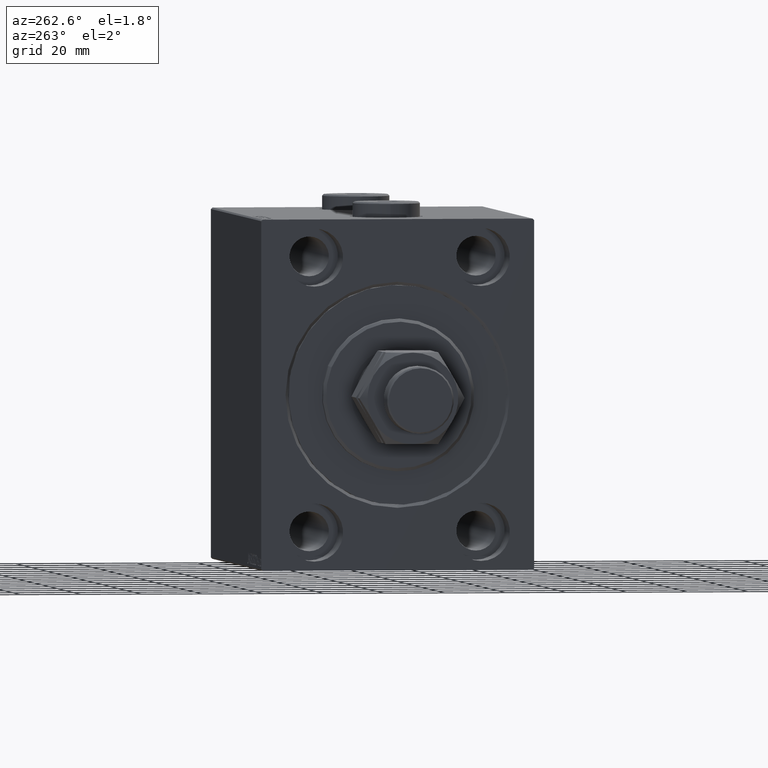
[diagram: clean part render]
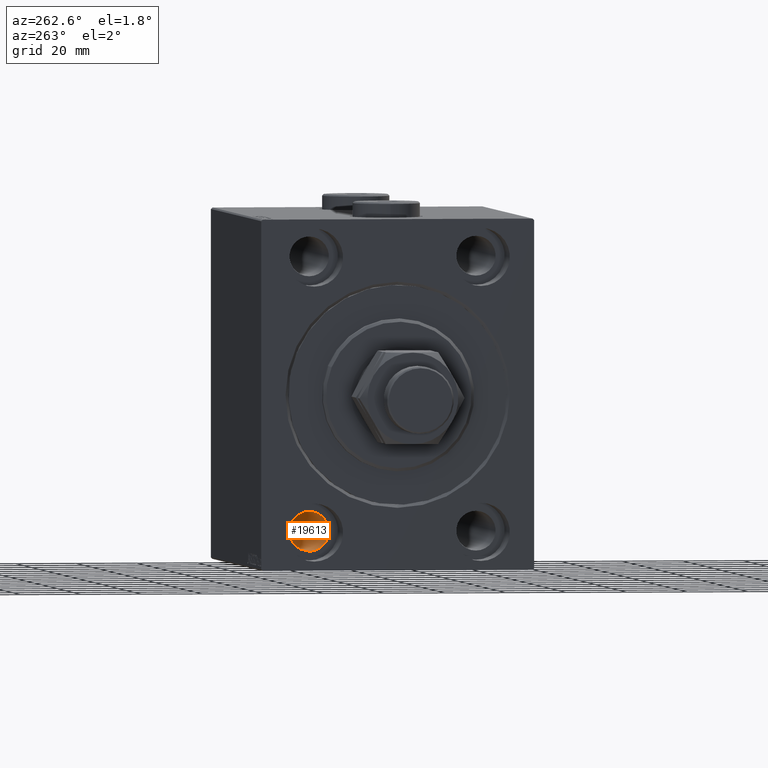
[diagram: same view with one face highlighted and labeled with its STEP entity id]
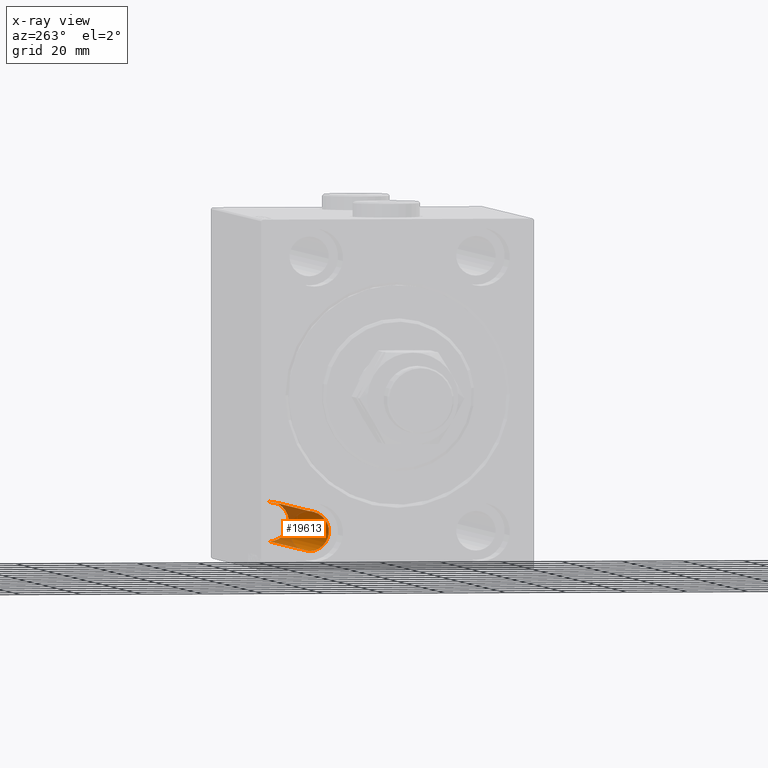
[diagram: x-ray of the same camera — body ghosted, the highlighted face saturated]
A machine part, auxiliary view. The second image highlights one B-rep face of the part: STEP entity #19613.
The next image is the same camera in x-ray: the body ghosted, the highlighted face saturated — about 25% of this face is hidden behind the body in this view.
In plain terms, the highlighted cylindrical surface (edge-blend (fillet) strip) has radius 6.5 mm, axis along (-1, -0, -0).
Its self-contained STEP definition (entity closure, byte-faithful):
#1648 = DIRECTION ( 'NONE',  ( -1.000000000000000000, -0.000000000000000000, -0.000000000000000000 ) ) ;
#1920 = DIRECTION ( 'NONE',  ( -1.000000000000000000, -0.000000000000000000, -0.000000000000000000 ) ) ;
#1941 = EDGE_CURVE ( 'NONE', #21157, #6068, #30909, .T. ) ;
#2170 = CIRCLE ( 'NONE', #14325, 6.499999999999999112 ) ;
#2382 = CARTESIAN_POINT ( 'NONE',  ( 115.0000000000000000, 27.49999999999998934, -44.99999999999998579 ) ) ;
#4993 = FACE_OUTER_BOUND ( 'NONE', #34231, .T. ) ;
#5596 = CIRCLE ( 'NONE', #16215, 6.499999999999999112 ) ;
#5975 = ORIENTED_EDGE ( 'NONE', *, *, #1941, .F. ) ;
#6068 = VERTEX_POINT ( 'NONE', #21674 ) ;
#7124 = DIRECTION ( 'NONE',  ( -1.000000000000000000, -0.000000000000000000, -0.000000000000000000 ) ) ;
#8150 = AXIS2_PLACEMENT_3D ( 'NONE', #19503, #1648, #15697 ) ;
#10219 = CARTESIAN_POINT ( 'NONE',  ( 128.0000000000000000, 27.49999999999998934, -51.49999999999998579 ) ) ;
#11736 = CARTESIAN_POINT ( 'NONE',  ( 115.0000000000000000, 27.49999999999998934, -51.49999999999998579 ) ) ;
#12622 = CARTESIAN_POINT ( 'NONE',  ( 128.0000000000000000, 27.49999999999998934, -38.49999999999998579 ) ) ;
#14325 = AXIS2_PLACEMENT_3D ( 'NONE', #39635, #24905, #28701 ) ;
#15697 = DIRECTION ( 'NONE',  ( 0.000000000000000000, 0.000000000000000000, 1.000000000000000000 ) ) ;
#16162 = VERTEX_POINT ( 'NONE', #11736 ) ;
#16215 = AXIS2_PLACEMENT_3D ( 'NONE', #2382, #1920, #16664 ) ;
#16664 = DIRECTION ( 'NONE',  ( 0.000000000000000000, 0.000000000000000000, -1.000000000000000000 ) ) ;
#19503 = CARTESIAN_POINT ( 'NONE',  ( 128.0000000000000000, 27.49999999999998934, -44.99999999999998579 ) ) ;
#19613 = ADVANCED_FACE ( 'NONE', ( #4993 ), #33772, .F. ) ;
#21157 = VERTEX_POINT ( 'NONE', #39804 ) ;
#21674 = CARTESIAN_POINT ( 'NONE',  ( 12.99999999999999822, 27.49999999999998934, -38.49999999999998579 ) ) ;
#22347 = ORIENTED_EDGE ( 'NONE', *, *, #39900, .F. ) ;
#23112 = EDGE_CURVE ( 'NONE', #43204, #6068, #2170, .T. ) ;
#24329 = VECTOR ( 'NONE', #7124, 1000.000000000000000 ) ;
#24905 = DIRECTION ( 'NONE',  ( -1.000000000000000000, 0.000000000000000000, 0.000000000000000000 ) ) ;
#28701 = DIRECTION ( 'NONE',  ( 0.000000000000000000, 0.000000000000000000, 1.000000000000000000 ) ) ;
#28981 = EDGE_CURVE ( 'NONE', #16162, #43204, #35891, .T. ) ;
#30909 = LINE ( 'NONE', #12622, #33641 ) ;
#32291 = ORIENTED_EDGE ( 'NONE', *, *, #23112, .T. ) ;
#33641 = VECTOR ( 'NONE', #41625, 1000.000000000000000 ) ;
#33772 = CYLINDRICAL_SURFACE ( 'NONE', #8150, 6.499999999999999112 ) ;
#34231 = EDGE_LOOP ( 'NONE', ( #22347, #44467, #32291, #5975 ) ) ;
#35891 = LINE ( 'NONE', #10219, #24329 ) ;
#39635 = CARTESIAN_POINT ( 'NONE',  ( 12.99999999999999822, 27.49999999999998934, -44.99999999999998579 ) ) ;
#39804 = CARTESIAN_POINT ( 'NONE',  ( 115.0000000000000000, 27.49999999999998934, -38.49999999999998579 ) ) ;
#39900 = EDGE_CURVE ( 'NONE', #16162, #21157, #5596, .T. ) ;
#41625 = DIRECTION ( 'NONE',  ( -1.000000000000000000, -0.000000000000000000, -0.000000000000000000 ) ) ;
#43204 = VERTEX_POINT ( 'NONE', #46772 ) ;
#44467 = ORIENTED_EDGE ( 'NONE', *, *, #28981, .T. ) ;
#46772 = CARTESIAN_POINT ( 'NONE',  ( 12.99999999999999822, 27.49999999999998934, -51.49999999999998579 ) ) ;